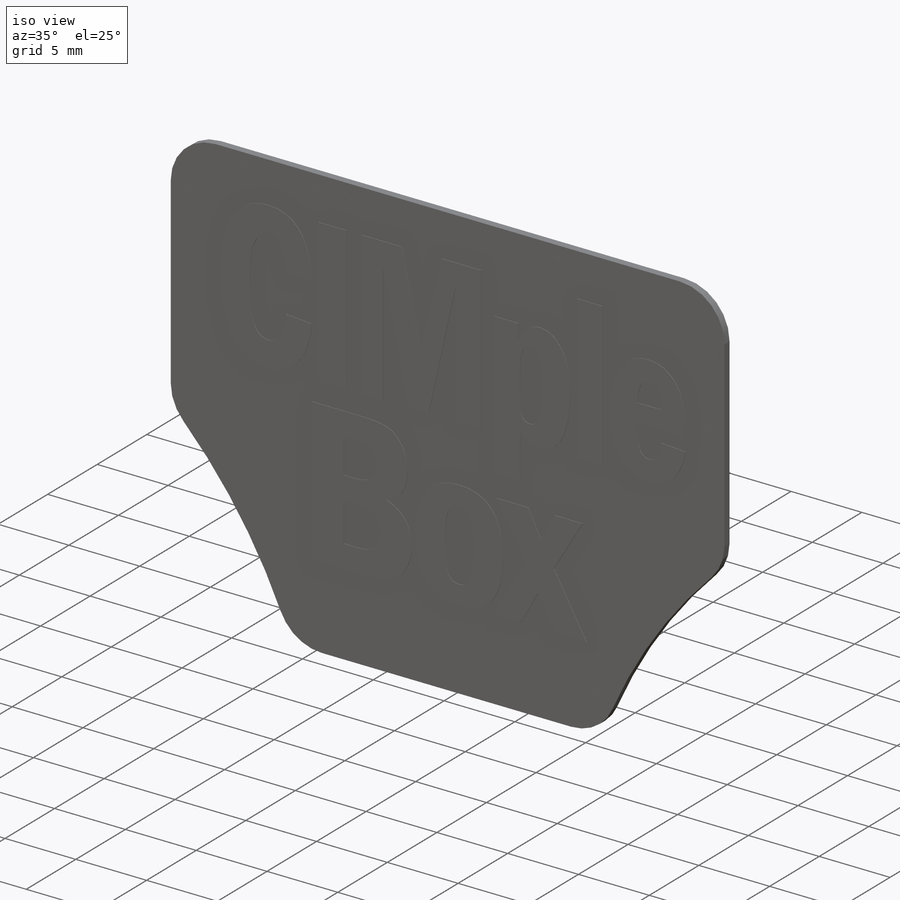
[diagram: iso view]
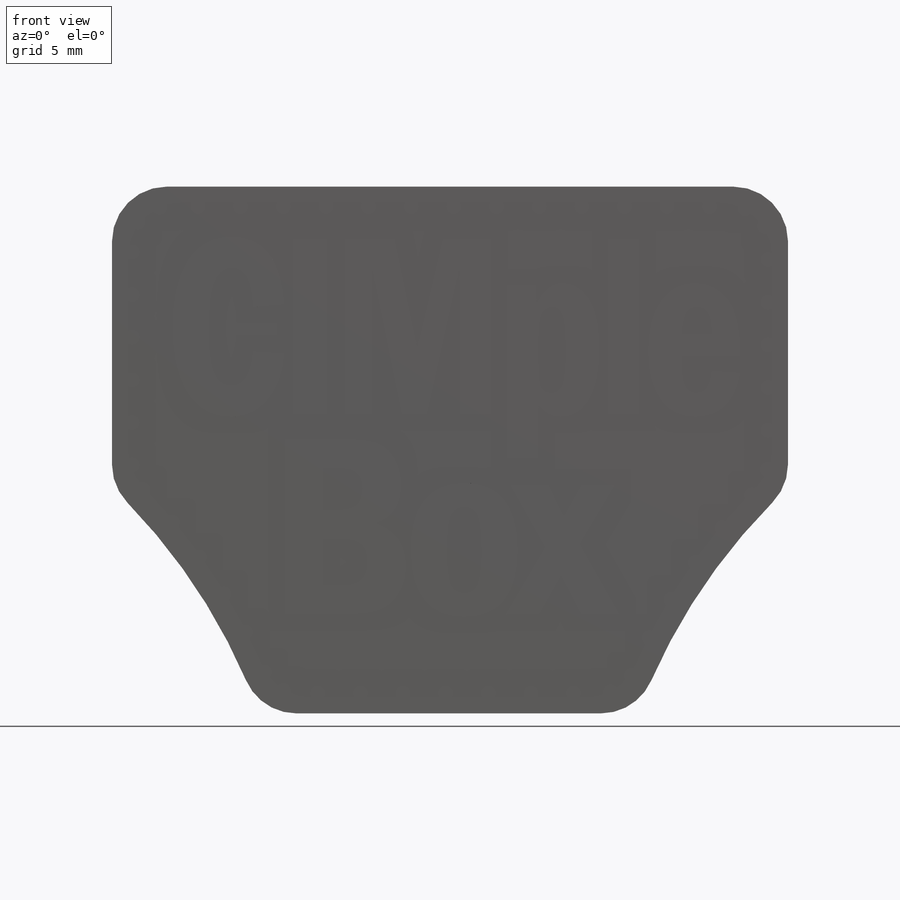
[diagram: front view]
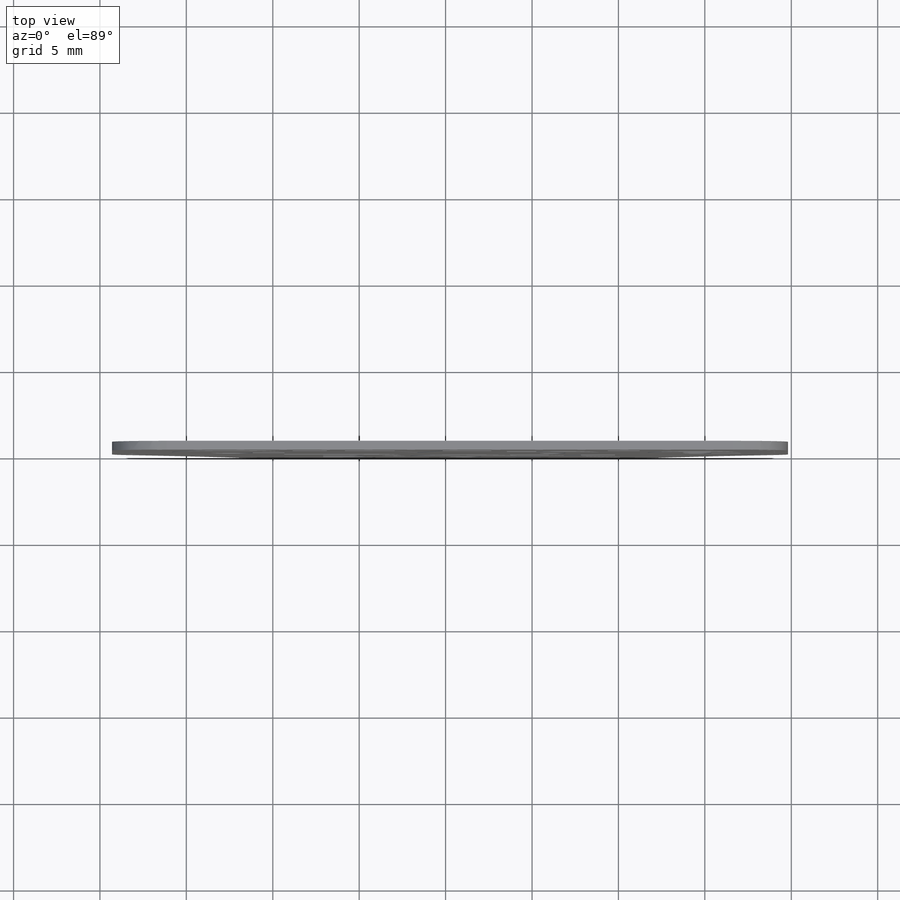
[diagram: top view]
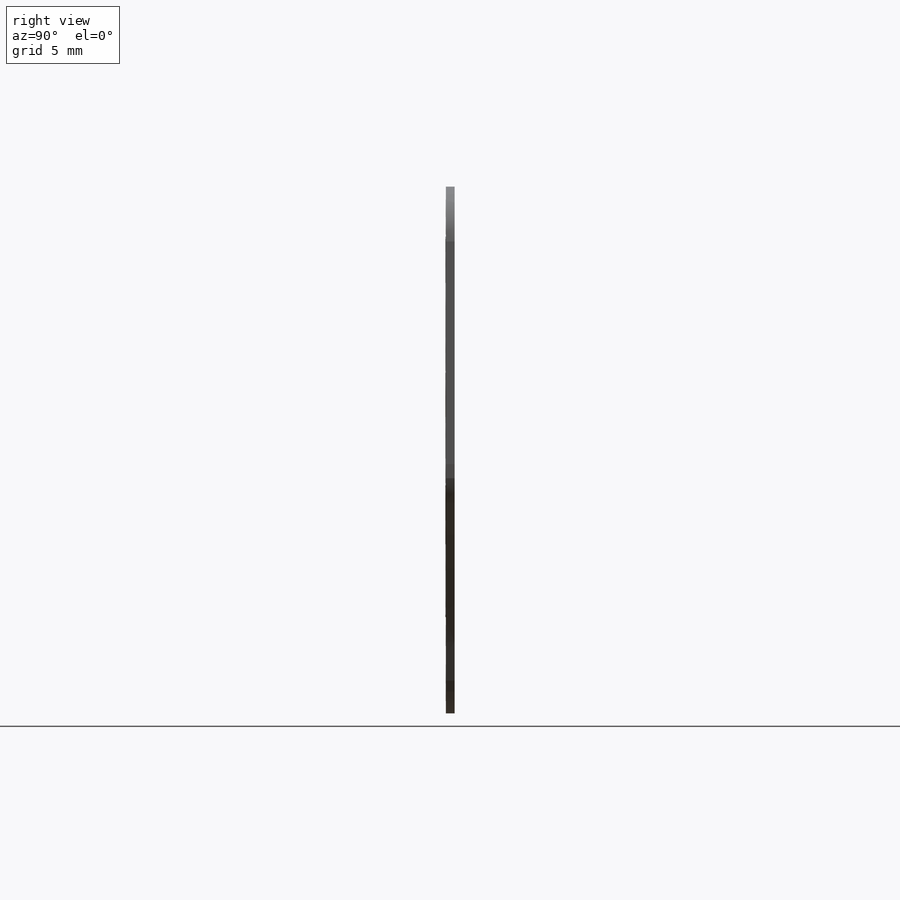
[diagram: right view]
SOLIDWORKS PART (.sldprt)
format: sldprt  version: not decoded by parser v0  size: 708,096 bytes
history: native  units: mm
features: sketch x4, extrude x3, material x1 (+16 scaffold rows collapsed)
feature tree (24):
  scaffold x16  (default folders/planes/origin — collapsed)
  material  "PVC Rigid"
  sketch  "Sketch1"  dims[c1.D1=3.175mm c1.D2=34.29mm c1.D3=~8.987566mm c1.D4=~11.893266mm c1.D5=~18.894443mm c1.D6=19.812mm c1.D7=~43.274828mm c1.D8=~8.632624mm c1.D9=~11.54747mm c1.D10=~18.408559mm c1.D11=19.304mm c1.D12=~43.027802mm c2.D3=~8.987566mm c2.D4=~11.893266mm c2.D5=~18.894443mm c2.D6=~8.632624mm c2.D7=~11.54747mm c2.D8=~18.408559mm c2.D9=30.48mm]
  extrude  "Extrude1"  Depth=0.508mm
  sketch  "Sketch2"
  extrude  "Extrude2"  Depth=0.0254mm
  sketch  "Sketch3"  dims[D1=0.889mm D2=1.1684mm]
  extrude  "Extrude3"  Depth=0.00254mm
  sketch  "Sketch4"  dims[c1.D1=0.0mm c2.D1=50.0 c2.D3=50.0mm c2.D2=1.0 c2.D4=50.0mm]
decode coverage: 6 of 7 modeling features carry decoded parameters
note: ~ marks probable driven/reference dimensions
note: suppression state not decoded; provenance and decode notes live in map.json
